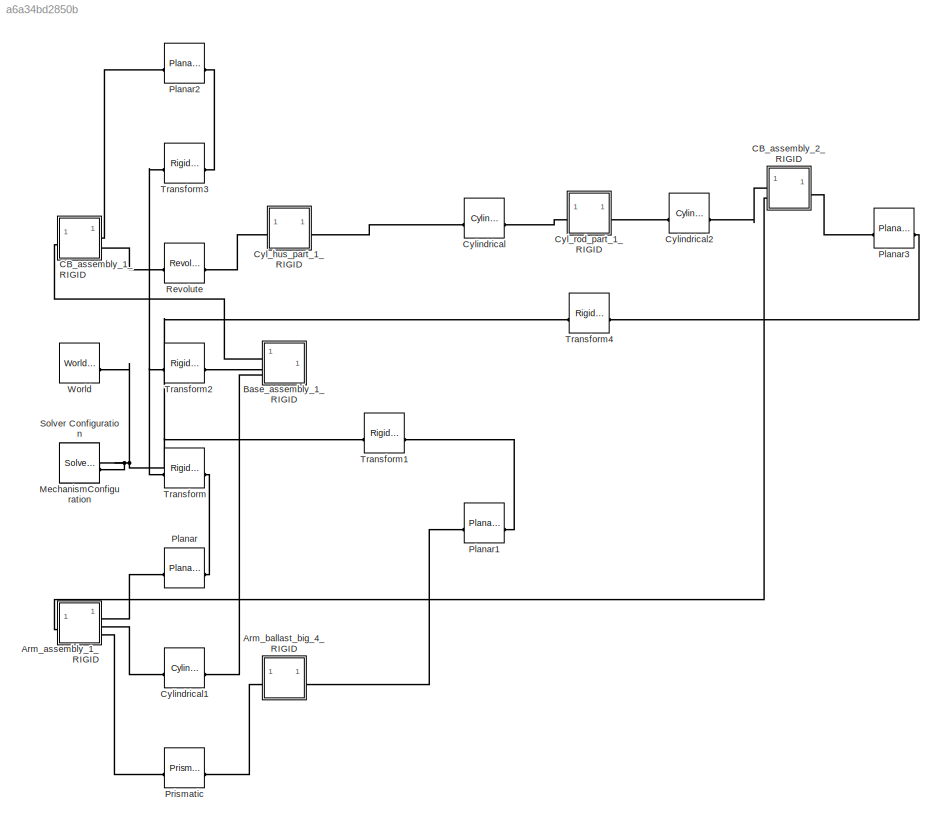
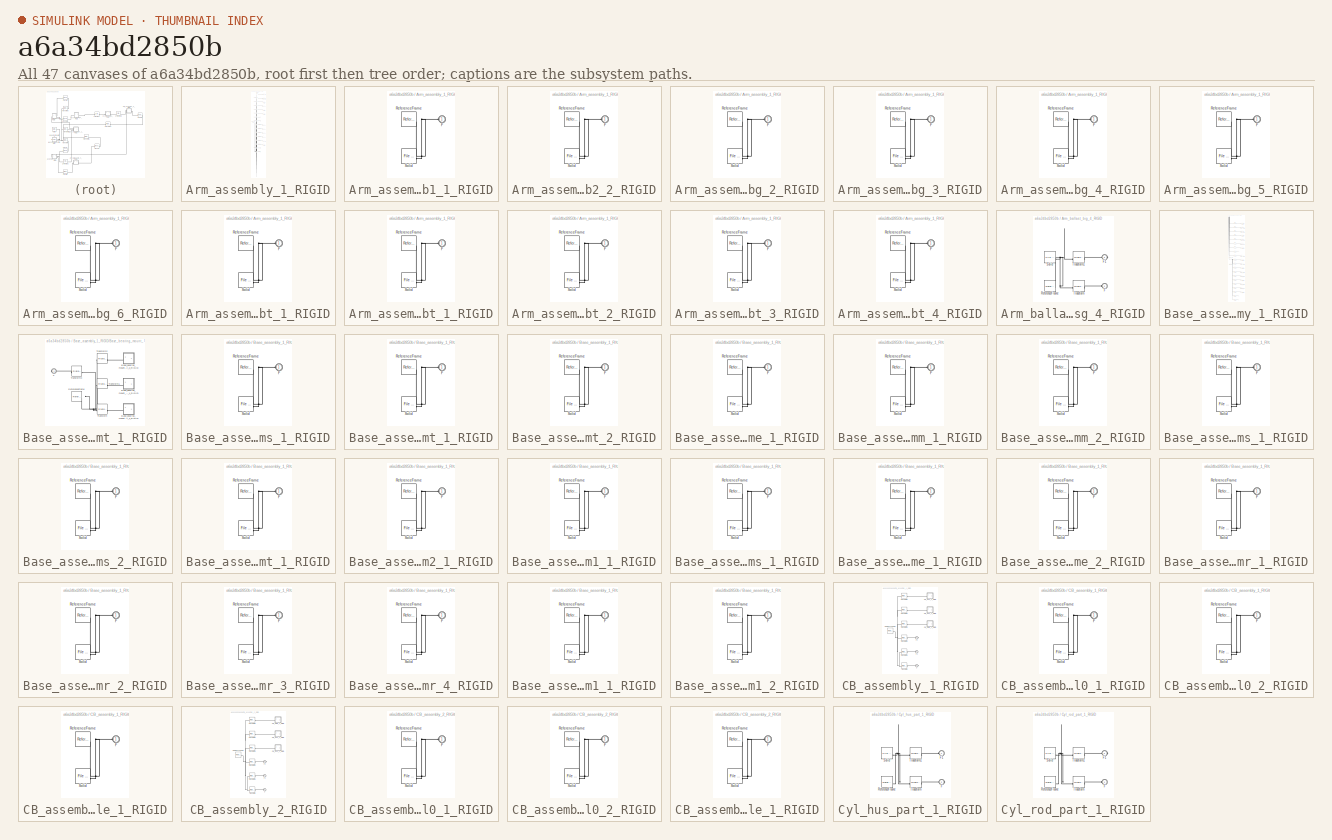
[diagram: thumbnail index - all 47 canvases of the model, root first then tree order]
MODEL slx_a6a34bd2850b
KIND model
CONFIG AbsTol = auto
CONFIG EnableMultiTasking = off
CONFIG FixedStep = auto
CONFIG MaxStep = auto
CONFIG MinStep = auto
CONFIG RelTol = 1e-3
CONFIG SampleTimeConstraint = Unconstrained
CONFIG SolverName = VariableStepAuto
CONFIG StartTime = 0.0
CONFIG StopTime = 10.0
WORKSPACE source: external: MATLAB File  (data not in archive)
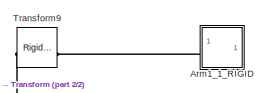
[diagram: Arm_assembly_1_RIGID - part 1/2, top center region]
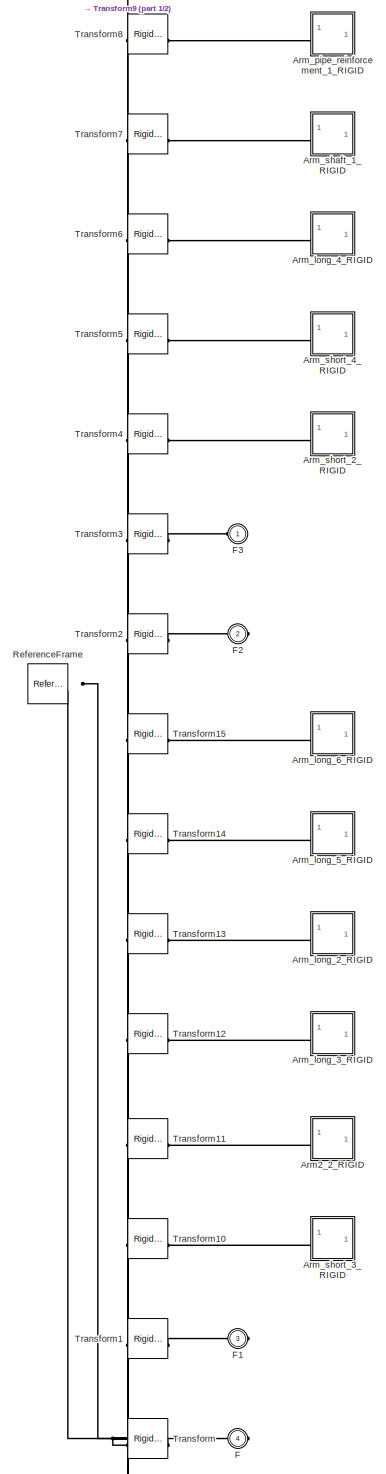
[diagram: Arm_assembly_1_RIGID - part 2/2, full width, middle band]
BLOCK [SubSystem] Arm_assembly_1_RIGID
BLOCK [SubSystem] Arm_assembly_1_RIGID/Arm1_1_RIGID
BLOCK [PMIOPort] Arm_assembly_1_RIGID/Arm1_1_RIGID/F
  Side = Left
BLOCK [Reference] Arm_assembly_1_RIGID/Arm1_1_RIGID/ReferenceFrame  REF=sm_lib/Frames and
Transforms/Reference
Frame
  SourceBlock = sm_lib/Frames and\nTransforms/Reference\nFrame
  SourceType = Reference\nFrame
BLOCK [Reference] Arm_assembly_1_RIGID/Arm1_1_RIGID/Solid  REF=sm_lib/Body Elements/File Solid
  SourceBlock = sm_lib/Body Elements/File Solid
  SourceType = File Solid
BLOCK [SubSystem] Arm_assembly_1_RIGID/Arm2_2_RIGID
BLOCK [PMIOPort] Arm_assembly_1_RIGID/Arm2_2_RIGID/F
  Side = Left
BLOCK [Reference] Arm_assembly_1_RIGID/Arm2_2_RIGID/ReferenceFrame  REF=sm_lib/Frames and
Transforms/Reference
Frame
  SourceBlock = sm_lib/Frames and\nTransforms/Reference\nFrame
  SourceType = Reference\nFrame
BLOCK [Reference] Arm_assembly_1_RIGID/Arm2_2_RIGID/Solid  REF=sm_lib/Body Elements/File Solid
  SourceBlock = sm_lib/Body Elements/File Solid
  SourceType = File Solid
BLOCK [SubSystem] Arm_assembly_1_RIGID/Arm_long_2_RIGID
BLOCK [PMIOPort] Arm_assembly_1_RIGID/Arm_long_2_RIGID/F
  Side = Left
BLOCK [Reference] Arm_assembly_1_RIGID/Arm_long_2_RIGID/ReferenceFrame  REF=sm_lib/Frames and
Transforms/Reference
Frame
  SourceBlock = sm_lib/Frames and\nTransforms/Reference\nFrame
  SourceType = Reference\nFrame
BLOCK [Reference] Arm_assembly_1_RIGID/Arm_long_2_RIGID/Solid  REF=sm_lib/Body Elements/File Solid
  SourceBlock = sm_lib/Body Elements/File Solid
  SourceType = File Solid
BLOCK [SubSystem] Arm_assembly_1_RIGID/Arm_long_3_RIGID
BLOCK [PMIOPort] Arm_assembly_1_RIGID/Arm_long_3_RIGID/F
  Side = Left
BLOCK [Reference] Arm_assembly_1_RIGID/Arm_long_3_RIGID/ReferenceFrame  REF=sm_lib/Frames and
Transforms/Reference
Frame
  SourceBlock = sm_lib/Frames and\nTransforms/Reference\nFrame
  SourceType = Reference\nFrame
BLOCK [Reference] Arm_assembly_1_RIGID/Arm_long_3_RIGID/Solid  REF=sm_lib/Body Elements/File Solid
  SourceBlock = sm_lib/Body Elements/File Solid
  SourceType = File Solid
BLOCK [SubSystem] Arm_assembly_1_RIGID/Arm_long_4_RIGID
BLOCK [PMIOPort] Arm_assembly_1_RIGID/Arm_long_4_RIGID/F
  Side = Left
BLOCK [Reference] Arm_assembly_1_RIGID/Arm_long_4_RIGID/ReferenceFrame  REF=sm_lib/Frames and
Transforms/Reference
Frame
  SourceBlock = sm_lib/Frames and\nTransforms/Reference\nFrame
  SourceType = Reference\nFrame
BLOCK [Reference] Arm_assembly_1_RIGID/Arm_long_4_RIGID/Solid  REF=sm_lib/Body Elements/File Solid
  SourceBlock = sm_lib/Body Elements/File Solid
  SourceType = File Solid
BLOCK [SubSystem] Arm_assembly_1_RIGID/Arm_long_5_RIGID
BLOCK [PMIOPort] Arm_assembly_1_RIGID/Arm_long_5_RIGID/F
  Side = Left
BLOCK [Reference] Arm_assembly_1_RIGID/Arm_long_5_RIGID/ReferenceFrame  REF=sm_lib/Frames and
Transforms/Reference
Frame
  SourceBlock = sm_lib/Frames and\nTransforms/Reference\nFrame
  SourceType = Reference\nFrame
BLOCK [Reference] Arm_assembly_1_RIGID/Arm_long_5_RIGID/Solid  REF=sm_lib/Body Elements/File Solid
  SourceBlock = sm_lib/Body Elements/File Solid
  SourceType = File Solid
BLOCK [SubSystem] Arm_assembly_1_RIGID/Arm_long_6_RIGID
BLOCK [PMIOPort] Arm_assembly_1_RIGID/Arm_long_6_RIGID/F
  Side = Left
BLOCK [Reference] Arm_assembly_1_RIGID/Arm_long_6_RIGID/ReferenceFrame  REF=sm_lib/Frames and
Transforms/Reference
Frame
  SourceBlock = sm_lib/Frames and\nTransforms/Reference\nFrame
  SourceType = Reference\nFrame
BLOCK [Reference] Arm_assembly_1_RIGID/Arm_long_6_RIGID/Solid  REF=sm_lib/Body Elements/File Solid
  SourceBlock = sm_lib/Body Elements/File Solid
  SourceType = File Solid
BLOCK [SubSystem] Arm_assembly_1_RIGID/Arm_pipe_reinforcement_1_RIGID
BLOCK [PMIOPort] Arm_assembly_1_RIGID/Arm_pipe_reinforcement_1_RIGID/F
  Side = Left
BLOCK [Reference] Arm_assembly_1_RIGID/Arm_pipe_reinforcement_1_RIGID/ReferenceFrame  REF=sm_lib/Frames and
Transforms/Reference
Frame
  SourceBlock = sm_lib/Frames and\nTransforms/Reference\nFrame
  SourceType = Reference\nFrame
BLOCK [Reference] Arm_assembly_1_RIGID/Arm_pipe_reinforcement_1_RIGID/Solid  REF=sm_lib/Body Elements/File Solid
  SourceBlock = sm_lib/Body Elements/File Solid
  SourceType = File Solid
BLOCK [SubSystem] Arm_assembly_1_RIGID/Arm_shaft_1_RIGID
BLOCK [PMIOPort] Arm_assembly_1_RIGID/Arm_shaft_1_RIGID/F
  Side = Left
BLOCK [Reference] Arm_assembly_1_RIGID/Arm_shaft_1_RIGID/ReferenceFrame  REF=sm_lib/Frames and
Transforms/Reference
Frame
  SourceBlock = sm_lib/Frames and\nTransforms/Reference\nFrame
  SourceType = Reference\nFrame
BLOCK [Reference] Arm_assembly_1_RIGID/Arm_shaft_1_RIGID/Solid  REF=sm_lib/Body Elements/File Solid
  SourceBlock = sm_lib/Body Elements/File Solid
  SourceType = File Solid
BLOCK [SubSystem] Arm_assembly_1_RIGID/Arm_short_2_RIGID
BLOCK [PMIOPort] Arm_assembly_1_RIGID/Arm_short_2_RIGID/F
  Side = Left
BLOCK [Reference] Arm_assembly_1_RIGID/Arm_short_2_RIGID/ReferenceFrame  REF=sm_lib/Frames and
Transforms/Reference
Frame
  SourceBlock = sm_lib/Frames and\nTransforms/Reference\nFrame
  SourceType = Reference\nFrame
BLOCK [Reference] Arm_assembly_1_RIGID/Arm_short_2_RIGID/Solid  REF=sm_lib/Body Elements/File Solid
  SourceBlock = sm_lib/Body Elements/File Solid
  SourceType = File Solid
BLOCK [SubSystem] Arm_assembly_1_RIGID/Arm_short_3_RIGID
BLOCK [PMIOPort] Arm_assembly_1_RIGID/Arm_short_3_RIGID/F
  Side = Left
BLOCK [Reference] Arm_assembly_1_RIGID/Arm_short_3_RIGID/ReferenceFrame  REF=sm_lib/Frames and
Transforms/Reference
Frame
  SourceBlock = sm_lib/Frames and\nTransforms/Reference\nFrame
  SourceType = Reference\nFrame
BLOCK [Reference] Arm_assembly_1_RIGID/Arm_short_3_RIGID/Solid  REF=sm_lib/Body Elements/File Solid
  SourceBlock = sm_lib/Body Elements/File Solid
  SourceType = File Solid
BLOCK [SubSystem] Arm_assembly_1_RIGID/Arm_short_4_RIGID
BLOCK [PMIOPort] Arm_assembly_1_RIGID/Arm_short_4_RIGID/F
  Side = Left
BLOCK [Reference] Arm_assembly_1_RIGID/Arm_short_4_RIGID/ReferenceFrame  REF=sm_lib/Frames and
Transforms/Reference
Frame
  SourceBlock = sm_lib/Frames and\nTransforms/Reference\nFrame
  SourceType = Reference\nFrame
BLOCK [Reference] Arm_assembly_1_RIGID/Arm_short_4_RIGID/Solid  REF=sm_lib/Body Elements/File Solid
  SourceBlock = sm_lib/Body Elements/File Solid
  SourceType = File Solid
BLOCK [PMIOPort] Arm_assembly_1_RIGID/F
  Port = 4
  Side = Right
BLOCK [PMIOPort] Arm_assembly_1_RIGID/F1
  Port = 3
  Side = Right
BLOCK [PMIOPort] Arm_assembly_1_RIGID/F2
  Port = 2
  Side = Right
BLOCK [PMIOPort] Arm_assembly_1_RIGID/F3
  Side = Left
BLOCK [Reference] Arm_assembly_1_RIGID/ReferenceFrame  REF=sm_lib/Frames and
Transforms/Reference
Frame
  SourceBlock = sm_lib/Frames and\nTransforms/Reference\nFrame
  SourceType = Reference\nFrame
BLOCK [Reference] Arm_assembly_1_RIGID/Transform  REF=sm_lib/Frames and
Transforms/Rigid
Transform
  SourceBlock = sm_lib/Frames and\nTransforms/Rigid\nTransform
  SourceType = Rigid\nTransform
BLOCK [Reference] Arm_assembly_1_RIGID/Transform1  REF=sm_lib/Frames and
Transforms/Rigid
Transform
  SourceBlock = sm_lib/Frames and\nTransforms/Rigid\nTransform
  SourceType = Rigid\nTransform
BLOCK [Reference] Arm_assembly_1_RIGID/Transform10  REF=sm_lib/Frames and
Transforms/Rigid
Transform
  SourceBlock = sm_lib/Frames and\nTransforms/Rigid\nTransform
  SourceType = Rigid\nTransform
BLOCK [Reference] Arm_assembly_1_RIGID/Transform11  REF=sm_lib/Frames and
Transforms/Rigid
Transform
  SourceBlock = sm_lib/Frames and\nTransforms/Rigid\nTransform
  SourceType = Rigid\nTransform
BLOCK [Reference] Arm_assembly_1_RIGID/Transform12  REF=sm_lib/Frames and
Transforms/Rigid
Transform
  SourceBlock = sm_lib/Frames and\nTransforms/Rigid\nTransform
  SourceType = Rigid\nTransform
BLOCK [Reference] Arm_assembly_1_RIGID/Transform13  REF=sm_lib/Frames and
Transforms/Rigid
Transform
  SourceBlock = sm_lib/Frames and\nTransforms/Rigid\nTransform
  SourceType = Rigid\nTransform
BLOCK [Reference] Arm_assembly_1_RIGID/Transform14  REF=sm_lib/Frames and
Transforms/Rigid
Transform
  SourceBlock = sm_lib/Frames and\nTransforms/Rigid\nTransform
  SourceType = Rigid\nTransform
BLOCK [Reference] Arm_assembly_1_RIGID/Transform15  REF=sm_lib/Frames and
Transforms/Rigid
Transform
  SourceBlock = sm_lib/Frames and\nTransforms/Rigid\nTransform
  SourceType = Rigid\nTransform
BLOCK [Reference] Arm_assembly_1_RIGID/Transform2  REF=sm_lib/Frames and
Transforms/Rigid
Transform
  SourceBlock = sm_lib/Frames and\nTransforms/Rigid\nTransform
  SourceType = Rigid\nTransform
BLOCK [Reference] Arm_assembly_1_RIGID/Transform3  REF=sm_lib/Frames and
Transforms/Rigid
Transform
  SourceBlock = sm_lib/Frames and\nTransforms/Rigid\nTransform
  SourceType = Rigid\nTransform
BLOCK [Reference] Arm_assembly_1_RIGID/Transform4  REF=sm_lib/Frames and
Transforms/Rigid
Transform
  SourceBlock = sm_lib/Frames and\nTransforms/Rigid\nTransform
  SourceType = Rigid\nTransform
BLOCK [Reference] Arm_assembly_1_RIGID/Transform5  REF=sm_lib/Frames and
Transforms/Rigid
Transform
  SourceBlock = sm_lib/Frames and\nTransforms/Rigid\nTransform
  SourceType = Rigid\nTransform
BLOCK [Reference] Arm_assembly_1_RIGID/Transform6  REF=sm_lib/Frames and
Transforms/Rigid
Transform
  SourceBlock = sm_lib/Frames and\nTransforms/Rigid\nTransform
  SourceType = Rigid\nTransform
BLOCK [Reference] Arm_assembly_1_RIGID/Transform7  REF=sm_lib/Frames and
Transforms/Rigid
Transform
  SourceBlock = sm_lib/Frames and\nTransforms/Rigid\nTransform
  SourceType = Rigid\nTransform
BLOCK [Reference] Arm_assembly_1_RIGID/Transform8  REF=sm_lib/Frames and
Transforms/Rigid
Transform
  SourceBlock = sm_lib/Frames and\nTransforms/Rigid\nTransform
  SourceType = Rigid\nTransform
BLOCK [Reference] Arm_assembly_1_RIGID/Transform9  REF=sm_lib/Frames and
Transforms/Rigid
Transform
  SourceBlock = sm_lib/Frames and\nTransforms/Rigid\nTransform
  SourceType = Rigid\nTransform
BLOCK [SubSystem] Arm_ballast_big_4_RIGID
BLOCK [PMIOPort] Arm_ballast_big_4_RIGID/F
  Side = Left
BLOCK [PMIOPort] Arm_ballast_big_4_RIGID/F1
  Port = 2
  Side = Right
BLOCK [Reference] Arm_ballast_big_4_RIGID/ReferenceFrame  REF=sm_lib/Frames and
Transforms/Reference
Frame
  SourceBlock = sm_lib/Frames and\nTransforms/Reference\nFrame
  SourceType = Reference\nFrame
BLOCK [Reference] Arm_ballast_big_4_RIGID/Solid  REF=sm_lib/Body Elements/File Solid
  SourceBlock = sm_lib/Body Elements/File Solid
  SourceType = File Solid
BLOCK [Reference] Arm_ballast_big_4_RIGID/Transform  REF=sm_lib/Frames and
Transforms/Rigid
Transform
  SourceBlock = sm_lib/Frames and\nTransforms/Rigid\nTransform
  SourceType = Rigid\nTransform
BLOCK [Reference] Arm_ballast_big_4_RIGID/Transform1  REF=sm_lib/Frames and
Transforms/Rigid
Transform
  SourceBlock = sm_lib/Frames and\nTransforms/Rigid\nTransform
  SourceType = Rigid\nTransform
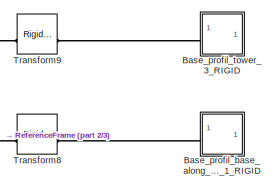
[diagram: Base_assembly_1_RIGID - part 1/3, top center region]
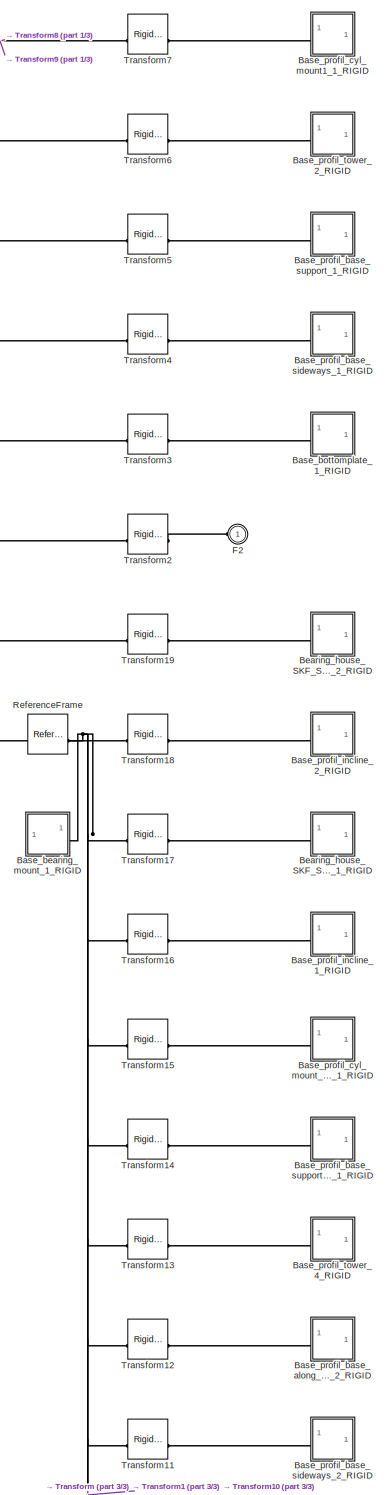
[diagram: Base_assembly_1_RIGID - part 2/3, full width, middle band]
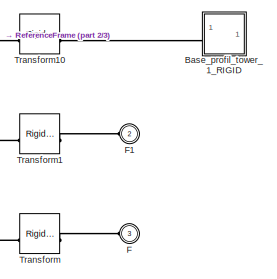
[diagram: Base_assembly_1_RIGID - part 3/3, bottom center region]
BLOCK [SubSystem] Base_assembly_1_RIGID
BLOCK [SubSystem] Base_assembly_1_RIGID/Base_bearing_mount_1_RIGID
BLOCK [SubSystem] Base_assembly_1_RIGID/Base_bearing_mount_1_RIGID/Base_bearing_mount_sideways_1_RIGID
BLOCK [PMIOPort] Base_assembly_1_RIGID/Base_bearing_mount_1_RIGID/Base_bearing_mount_sideways_1_RIGID/F
  Side = Left
BLOCK [Reference] Base_assembly_1_RIGID/Base_bearing_mount_1_RIGID/Base_bearing_mount_sideways_1_RIGID/ReferenceFrame  REF=sm_lib/Frames and
Transforms/Reference
Frame
  SourceBlock = sm_lib/Frames and\nTransforms/Reference\nFrame
  SourceType = Reference\nFrame
BLOCK [Reference] Base_assembly_1_RIGID/Base_bearing_mount_1_RIGID/Base_bearing_mount_sideways_1_RIGID/Solid  REF=sm_lib/Body Elements/File Solid
  SourceBlock = sm_lib/Body Elements/File Solid
  SourceType = File Solid
BLOCK [SubSystem] Base_assembly_1_RIGID/Base_bearing_mount_1_RIGID/Base_bearing_mount_support_1_RIGID
BLOCK [PMIOPort] Base_assembly_1_RIGID/Base_bearing_mount_1_RIGID/Base_bearing_mount_support_1_RIGID/F
  Side = Left
BLOCK [Reference] Base_assembly_1_RIGID/Base_bearing_mount_1_RIGID/Base_bearing_mount_support_1_RIGID/ReferenceFrame  REF=sm_lib/Frames and
Transforms/Reference
Frame
  SourceBlock = sm_lib/Frames and\nTransforms/Reference\nFrame
  SourceType = Reference\nFrame
BLOCK [Reference] Base_assembly_1_RIGID/Base_bearing_mount_1_RIGID/Base_bearing_mount_support_1_RIGID/Solid  REF=sm_lib/Body Elements/File Solid
  SourceBlock = sm_lib/Body Elements/File Solid
  SourceType = File Solid
BLOCK [SubSystem] Base_assembly_1_RIGID/Base_bearing_mount_1_RIGID/Base_bearing_mount_support_2_RIGID
BLOCK [PMIOPort] Base_assembly_1_RIGID/Base_bearing_mount_1_RIGID/Base_bearing_mount_support_2_RIGID/F
  Side = Left
BLOCK [Reference] Base_assembly_1_RIGID/Base_bearing_mount_1_RIGID/Base_bearing_mount_support_2_RIGID/ReferenceFrame  REF=sm_lib/Frames and
Transforms/Reference
Frame
  SourceBlock = sm_lib/Frames and\nTransforms/Reference\nFrame
  SourceType = Reference\nFrame
BLOCK [Reference] Base_assembly_1_RIGID/Base_bearing_mount_1_RIGID/Base_bearing_mount_support_2_RIGID/Solid  REF=sm_lib/Body Elements/File Solid
  SourceBlock = sm_lib/Body Elements/File Solid
  SourceType = File Solid
BLOCK [PMIOPort] Base_assembly_1_RIGID/Base_bearing_mount_1_RIGID/F
  Side = Right
BLOCK [Reference] Base_assembly_1_RIGID/Base_bearing_mount_1_RIGID/ReferenceFrame  REF=sm_lib/Frames and
Transforms/Reference
Frame
  SourceBlock = sm_lib/Frames and\nTransforms/Reference\nFrame
  SourceType = Reference\nFrame
BLOCK [Reference] Base_assembly_1_RIGID/Base_bearing_mount_1_RIGID/Transform  REF=sm_lib/Frames and
Transforms/Rigid
Transform
  SourceBlock = sm_lib/Frames and\nTransforms/Rigid\nTransform
  SourceType = Rigid\nTransform
BLOCK [Reference] Base_assembly_1_RIGID/Base_bearing_mount_1_RIGID/Transform1  REF=sm_lib/Frames and
Transforms/Rigid
Transform
  SourceBlock = sm_lib/Frames and\nTransforms/Rigid\nTransform
  SourceType = Rigid\nTransform
BLOCK [Reference] Base_assembly_1_RIGID/Base_bearing_mount_1_RIGID/Transform2  REF=sm_lib/Frames and
Transforms/Rigid
Transform
  SourceBlock = sm_lib/Frames and\nTransforms/Rigid\nTransform
  SourceType = Rigid\nTransform
BLOCK [Reference] Base_assembly_1_RIGID/Base_bearing_mount_1_RIGID/Transform3  REF=sm_lib/Frames and
Transforms/Rigid
Transform
  SourceBlock = sm_lib/Frames and\nTransforms/Rigid\nTransform
  SourceType = Rigid\nTransform
BLOCK [SubSystem] Base_assembly_1_RIGID/Base_bottomplate_1_RIGID
BLOCK [PMIOPort] Base_assembly_1_RIGID/Base_bottomplate_1_RIGID/F
  Side = Left
BLOCK [Reference] Base_assembly_1_RIGID/Base_bottomplate_1_RIGID/ReferenceFrame  REF=sm_lib/Frames and
Transforms/Reference
Frame
  SourceBlock = sm_lib/Frames and\nTransforms/Reference\nFrame
  SourceType = Reference\nFrame
BLOCK [Reference] Base_assembly_1_RIGID/Base_bottomplate_1_RIGID/Solid  REF=sm_lib/Body Elements/File Solid
  SourceBlock = sm_lib/Body Elements/File Solid
  SourceType = File Solid
BLOCK [SubSystem] Base_assembly_1_RIGID/Base_profil_base_along_arm_1_RIGID
BLOCK [PMIOPort] Base_assembly_1_RIGID/Base_profil_base_along_arm_1_RIGID/F
  Side = Left
BLOCK [Reference] Base_assembly_1_RIGID/Base_profil_base_along_arm_1_RIGID/ReferenceFrame  REF=sm_lib/Frames and
Transforms/Reference
Frame
  SourceBlock = sm_lib/Frames and\nTransforms/Reference\nFrame
  SourceType = Reference\nFrame
BLOCK [Reference] Base_assembly_1_RIGID/Base_profil_base_along_arm_1_RIGID/Solid  REF=sm_lib/Body Elements/File Solid
  SourceBlock = sm_lib/Body Elements/File Solid
  SourceType = File Solid
BLOCK [SubSystem] Base_assembly_1_RIGID/Base_profil_base_along_arm_2_RIGID
BLOCK [PMIOPort] Base_assembly_1_RIGID/Base_profil_base_along_arm_2_RIGID/F
  Side = Left
BLOCK [Reference] Base_assembly_1_RIGID/Base_profil_base_along_arm_2_RIGID/ReferenceFrame  REF=sm_lib/Frames and
Transforms/Reference
Frame
  SourceBlock = sm_lib/Frames and\nTransforms/Reference\nFrame
  SourceType = Reference\nFrame
BLOCK [Reference] Base_assembly_1_RIGID/Base_profil_base_along_arm_2_RIGID/Solid  REF=sm_lib/Body Elements/File Solid
  SourceBlock = sm_lib/Body Elements/File Solid
  SourceType = File Solid
BLOCK [SubSystem] Base_assembly_1_RIGID/Base_profil_base_sideways_1_RIGID
BLOCK [PMIOPort] Base_assembly_1_RIGID/Base_profil_base_sideways_1_RIGID/F
  Side = Left
BLOCK [Reference] Base_assembly_1_RIGID/Base_profil_base_sideways_1_RIGID/ReferenceFrame  REF=sm_lib/Frames and
Transforms/Reference
Frame
  SourceBlock = sm_lib/Frames and\nTransforms/Reference\nFrame
  SourceType = Reference\nFrame
BLOCK [Reference] Base_assembly_1_RIGID/Base_profil_base_sideways_1_RIGID/Solid  REF=sm_lib/Body Elements/File Solid
  SourceBlock = sm_lib/Body Elements/File Solid
  SourceType = File Solid
BLOCK [SubSystem] Base_assembly_1_RIGID/Base_profil_base_sideways_2_RIGID
BLOCK [PMIOPort] Base_assembly_1_RIGID/Base_profil_base_sideways_2_RIGID/F
  Side = Left
BLOCK [Reference] Base_assembly_1_RIGID/Base_profil_base_sideways_2_RIGID/ReferenceFrame  REF=sm_lib/Frames and
Transforms/Reference
Frame
  SourceBlock = sm_lib/Frames and\nTransforms/Reference\nFrame
  SourceType = Reference\nFrame
BLOCK [Reference] Base_assembly_1_RIGID/Base_profil_base_sideways_2_RIGID/Solid  REF=sm_lib/Body Elements/File Solid
  SourceBlock = sm_lib/Body Elements/File Solid
  SourceType = File Solid
BLOCK [SubSystem] Base_assembly_1_RIGID/Base_profil_base_support_1_RIGID
BLOCK [PMIOPort] Base_assembly_1_RIGID/Base_profil_base_support_1_RIGID/F
  Side = Left
BLOCK [Reference] Base_assembly_1_RIGID/Base_profil_base_support_1_RIGID/ReferenceFrame  REF=sm_lib/Frames and
Transforms/Reference
Frame
  SourceBlock = sm_lib/Frames and\nTransforms/Reference\nFrame
  SourceType = Reference\nFrame
BLOCK [Reference] Base_assembly_1_RIGID/Base_profil_base_support_1_RIGID/Solid  REF=sm_lib/Body Elements/File Solid
  SourceBlock = sm_lib/Body Elements/File Solid
  SourceType = File Solid
BLOCK [SubSystem] Base_assembly_1_RIGID/Base_profil_base_support_2_1_RIGID
BLOCK [PMIOPort] Base_assembly_1_RIGID/Base_profil_base_support_2_1_RIGID/F
  Side = Left
BLOCK [Reference] Base_assembly_1_RIGID/Base_profil_base_support_2_1_RIGID/ReferenceFrame  REF=sm_lib/Frames and
Transforms/Reference
Frame
  SourceBlock = sm_lib/Frames and\nTransforms/Reference\nFrame
  SourceType = Reference\nFrame
BLOCK [Reference] Base_assembly_1_RIGID/Base_profil_base_support_2_1_RIGID/Solid  REF=sm_lib/Body Elements/File Solid
  SourceBlock = sm_lib/Body Elements/File Solid
  SourceType = File Solid
BLOCK [SubSystem] Base_assembly_1_RIGID/Base_profil_cyl_mount1_1_RIGID
BLOCK [PMIOPort] Base_assembly_1_RIGID/Base_profil_cyl_mount1_1_RIGID/F
  Side = Left
BLOCK [Reference] Base_assembly_1_RIGID/Base_profil_cyl_mount1_1_RIGID/ReferenceFrame  REF=sm_lib/Frames and
Transforms/Reference
Frame
  SourceBlock = sm_lib/Frames and\nTransforms/Reference\nFrame
  SourceType = Reference\nFrame
BLOCK [Reference] Base_assembly_1_RIGID/Base_profil_cyl_mount1_1_RIGID/Solid  REF=sm_lib/Body Elements/File Solid
  SourceBlock = sm_lib/Body Elements/File Solid
  SourceType = File Solid
BLOCK [SubSystem] Base_assembly_1_RIGID/Base_profil_cyl_mount_support_sideways_1_RIGID
BLOCK [PMIOPort] Base_assembly_1_RIGID/Base_profil_cyl_mount_support_sideways_1_RIGID/F
  Side = Left
BLOCK [Reference] Base_assembly_1_RIGID/Base_profil_cyl_mount_support_sideways_1_RIGID/ReferenceFrame  REF=sm_lib/Frames and
Transforms/Reference
Frame
  SourceBlock = sm_lib/Frames and\nTransforms/Reference\nFrame
  SourceType = Reference\nFrame
BLOCK [Reference] Base_assembly_1_RIGID/Base_profil_cyl_mount_support_sideways_1_RIGID/Solid  REF=sm_lib/Body Elements/File Solid
  SourceBlock = sm_lib/Body Elements/File Solid
  SourceType = File Solid
BLOCK [SubSystem] Base_assembly_1_RIGID/Base_profil_incline_1_RIGID
BLOCK [PMIOPort] Base_assembly_1_RIGID/Base_profil_incline_1_RIGID/F
  Side = Left
BLOCK [Reference] Base_assembly_1_RIGID/Base_profil_incline_1_RIGID/ReferenceFrame  REF=sm_lib/Frames and
Transforms/Reference
Frame
  SourceBlock = sm_lib/Frames and\nTransforms/Reference\nFrame
  SourceType = Reference\nFrame
BLOCK [Reference] Base_assembly_1_RIGID/Base_profil_incline_1_RIGID/Solid  REF=sm_lib/Body Elements/File Solid
  SourceBlock = sm_lib/Body Elements/File Solid
  SourceType = File Solid
BLOCK [SubSystem] Base_assembly_1_RIGID/Base_profil_incline_2_RIGID
BLOCK [PMIOPort] Base_assembly_1_RIGID/Base_profil_incline_2_RIGID/F
  Side = Left
BLOCK [Reference] Base_assembly_1_RIGID/Base_profil_incline_2_RIGID/ReferenceFrame  REF=sm_lib/Frames and
Transforms/Reference
Frame
  SourceBlock = sm_lib/Frames and\nTransforms/Reference\nFrame
  SourceType = Reference\nFrame
BLOCK [Reference] Base_assembly_1_RIGID/Base_profil_incline_2_RIGID/Solid  REF=sm_lib/Body Elements/File Solid
  SourceBlock = sm_lib/Body Elements/File Solid
  SourceType = File Solid
BLOCK [SubSystem] Base_assembly_1_RIGID/Base_profil_tower_1_RIGID
BLOCK [PMIOPort] Base_assembly_1_RIGID/Base_profil_tower_1_RIGID/F
  Side = Left
BLOCK [Reference] Base_assembly_1_RIGID/Base_profil_tower_1_RIGID/ReferenceFrame  REF=sm_lib/Frames and
Transforms/Reference
Frame
  SourceBlock = sm_lib/Frames and\nTransforms/Reference\nFrame
  SourceType = Reference\nFrame
BLOCK [Reference] Base_assembly_1_RIGID/Base_profil_tower_1_RIGID/Solid  REF=sm_lib/Body Elements/File Solid
  SourceBlock = sm_lib/Body Elements/File Solid
  SourceType = File Solid
BLOCK [SubSystem] Base_assembly_1_RIGID/Base_profil_tower_2_RIGID
BLOCK [PMIOPort] Base_assembly_1_RIGID/Base_profil_tower_2_RIGID/F
  Side = Left
BLOCK [Reference] Base_assembly_1_RIGID/Base_profil_tower_2_RIGID/ReferenceFrame  REF=sm_lib/Frames and
Transforms/Reference
Frame
  SourceBlock = sm_lib/Frames and\nTransforms/Reference\nFrame
  SourceType = Reference\nFrame
BLOCK [Reference] Base_assembly_1_RIGID/Base_profil_tower_2_RIGID/Solid  REF=sm_lib/Body Elements/File Solid
  SourceBlock = sm_lib/Body Elements/File Solid
  SourceType = File Solid
BLOCK [SubSystem] Base_assembly_1_RIGID/Base_profil_tower_3_RIGID
BLOCK [PMIOPort] Base_assembly_1_RIGID/Base_profil_tower_3_RIGID/F
  Side = Left
BLOCK [Reference] Base_assembly_1_RIGID/Base_profil_tower_3_RIGID/ReferenceFrame  REF=sm_lib/Frames and
Transforms/Reference
Frame
  SourceBlock = sm_lib/Frames and\nTransforms/Reference\nFrame
  SourceType = Reference\nFrame
BLOCK [Reference] Base_assembly_1_RIGID/Base_profil_tower_3_RIGID/Solid  REF=sm_lib/Body Elements/File Solid
  SourceBlock = sm_lib/Body Elements/File Solid
  SourceType = File Solid
BLOCK [SubSystem] Base_assembly_1_RIGID/Base_profil_tower_4_RIGID
BLOCK [PMIOPort] Base_assembly_1_RIGID/Base_profil_tower_4_RIGID/F
  Side = Left
BLOCK [Reference] Base_assembly_1_RIGID/Base_profil_tower_4_RIGID/ReferenceFrame  REF=sm_lib/Frames and
Transforms/Reference
Frame
  SourceBlock = sm_lib/Frames and\nTransforms/Reference\nFrame
  SourceType = Reference\nFrame
BLOCK [Reference] Base_assembly_1_RIGID/Base_profil_tower_4_RIGID/Solid  REF=sm_lib/Body Elements/File Solid
  SourceBlock = sm_lib/Body Elements/File Solid
  SourceType = File Solid
BLOCK [SubSystem] Base_assembly_1_RIGID/Bearing_house_SKF_SNA_513_611_1_RIGID
BLOCK [PMIOPort] Base_assembly_1_RIGID/Bearing_house_SKF_SNA_513_611_1_RIGID/F
  Side = Left
BLOCK [Reference] Base_assembly_1_RIGID/Bearing_house_SKF_SNA_513_611_1_RIGID/ReferenceFrame  REF=sm_lib/Frames and
Transforms/Reference
Frame
  SourceBlock = sm_lib/Frames and\nTransforms/Reference\nFrame
  SourceType = Reference\nFrame
BLOCK [Reference] Base_assembly_1_RIGID/Bearing_house_SKF_SNA_513_611_1_RIGID/Solid  REF=sm_lib/Body Elements/File Solid
  SourceBlock = sm_lib/Body Elements/File Solid
  SourceType = File Solid
BLOCK [SubSystem] Base_assembly_1_RIGID/Bearing_house_SKF_SNA_513_611_2_RIGID
BLOCK [PMIOPort] Base_assembly_1_RIGID/Bearing_house_SKF_SNA_513_611_2_RIGID/F
  Side = Left
BLOCK [Reference] Base_assembly_1_RIGID/Bearing_house_SKF_SNA_513_611_2_RIGID/ReferenceFrame  REF=sm_lib/Frames and
Transforms/Reference
Frame
  SourceBlock = sm_lib/Frames and\nTransforms/Reference\nFrame
  SourceType = Reference\nFrame
BLOCK [Reference] Base_assembly_1_RIGID/Bearing_house_SKF_SNA_513_611_2_RIGID/Solid  REF=sm_lib/Body Elements/File Solid
  SourceBlock = sm_lib/Body Elements/File Solid
  SourceType = File Solid
BLOCK [PMIOPort] Base_assembly_1_RIGID/F
  Port = 3
  Side = Left
BLOCK [PMIOPort] Base_assembly_1_RIGID/F1
  Port = 2
  Side = Left
BLOCK [PMIOPort] Base_assembly_1_RIGID/F2
  Side = Left
BLOCK [Reference] Base_assembly_1_RIGID/ReferenceFrame  REF=sm_lib/Frames and
Transforms/Reference
Frame
  SourceBlock = sm_lib/Frames and\nTransforms/Reference\nFrame
  SourceType = Reference\nFrame
BLOCK [Reference] Base_assembly_1_RIGID/Transform  REF=sm_lib/Frames and
Transforms/Rigid
Transform
  SourceBlock = sm_lib/Frames and\nTransforms/Rigid\nTransform
  SourceType = Rigid\nTransform
BLOCK [Reference] Base_assembly_1_RIGID/Transform1  REF=sm_lib/Frames and
Transforms/Rigid
Transform
  SourceBlock = sm_lib/Frames and\nTransforms/Rigid\nTransform
  SourceType = Rigid\nTransform
BLOCK [Reference] Base_assembly_1_RIGID/Transform10  REF=sm_lib/Frames and
Transforms/Rigid
Transform
  SourceBlock = sm_lib/Frames and\nTransforms/Rigid\nTransform
  SourceType = Rigid\nTransform
BLOCK [Reference] Base_assembly_1_RIGID/Transform11  REF=sm_lib/Frames and
Transforms/Rigid
Transform
  SourceBlock = sm_lib/Frames and\nTransforms/Rigid\nTransform
  SourceType = Rigid\nTransform
BLOCK [Reference] Base_assembly_1_RIGID/Transform12  REF=sm_lib/Frames and
Transforms/Rigid
Transform
  SourceBlock = sm_lib/Frames and\nTransforms/Rigid\nTransform
  SourceType = Rigid\nTransform
BLOCK [Reference] Base_assembly_1_RIGID/Transform13  REF=sm_lib/Frames and
Transforms/Rigid
Transform
  SourceBlock = sm_lib/Frames and\nTransforms/Rigid\nTransform
  SourceType = Rigid\nTransform
BLOCK [Reference] Base_assembly_1_RIGID/Transform14  REF=sm_lib/Frames and
Transforms/Rigid
Transform
  SourceBlock = sm_lib/Frames and\nTransforms/Rigid\nTransform
  SourceType = Rigid\nTransform
BLOCK [Reference] Base_assembly_1_RIGID/Transform15  REF=sm_lib/Frames and
Transforms/Rigid
Transform
  SourceBlock = sm_lib/Frames and\nTransforms/Rigid\nTransform
  SourceType = Rigid\nTransform
BLOCK [Reference] Base_assembly_1_RIGID/Transform16  REF=sm_lib/Frames and
Transforms/Rigid
Transform
  SourceBlock = sm_lib/Frames and\nTransforms/Rigid\nTransform
  SourceType = Rigid\nTransform
BLOCK [Reference] Base_assembly_1_RIGID/Transform17  REF=sm_lib/Frames and
Transforms/Rigid
Transform
  SourceBlock = sm_lib/Frames and\nTransforms/Rigid\nTransform
  SourceType = Rigid\nTransform
BLOCK [Reference] Base_assembly_1_RIGID/Transform18  REF=sm_lib/Frames and
Transforms/Rigid
Transform
  SourceBlock = sm_lib/Frames and\nTransforms/Rigid\nTransform
  SourceType = Rigid\nTransform
BLOCK [Reference] Base_assembly_1_RIGID/Transform19  REF=sm_lib/Frames and
Transforms/Rigid
Transform
  SourceBlock = sm_lib/Frames and\nTransforms/Rigid\nTransform
  SourceType = Rigid\nTransform
BLOCK [Reference] Base_assembly_1_RIGID/Transform2  REF=sm_lib/Frames and
Transforms/Rigid
Transform
  SourceBlock = sm_lib/Frames and\nTransforms/Rigid\nTransform
  SourceType = Rigid\nTransform
BLOCK [Reference] Base_assembly_1_RIGID/Transform3  REF=sm_lib/Frames and
Transforms/Rigid
Transform
  SourceBlock = sm_lib/Frames and\nTransforms/Rigid\nTransform
  SourceType = Rigid\nTransform
BLOCK [Reference] Base_assembly_1_RIGID/Transform4  REF=sm_lib/Frames and
Transforms/Rigid
Transform
  SourceBlock = sm_lib/Frames and\nTransforms/Rigid\nTransform
  SourceType = Rigid\nTransform
BLOCK [Reference] Base_assembly_1_RIGID/Transform5  REF=sm_lib/Frames and
Transforms/Rigid
Transform
  SourceBlock = sm_lib/Frames and\nTransforms/Rigid\nTransform
  SourceType = Rigid\nTransform
BLOCK [Reference] Base_assembly_1_RIGID/Transform6  REF=sm_lib/Frames and
Transforms/Rigid
Transform
  SourceBlock = sm_lib/Frames and\nTransforms/Rigid\nTransform
  SourceType = Rigid\nTransform
BLOCK [Reference] Base_assembly_1_RIGID/Transform7  REF=sm_lib/Frames and
Transforms/Rigid
Transform
  SourceBlock = sm_lib/Frames and\nTransforms/Rigid\nTransform
  SourceType = Rigid\nTransform
BLOCK [Reference] Base_assembly_1_RIGID/Transform8  REF=sm_lib/Frames and
Transforms/Rigid
Transform
  SourceBlock = sm_lib/Frames and\nTransforms/Rigid\nTransform
  SourceType = Rigid\nTransform
BLOCK [Reference] Base_assembly_1_RIGID/Transform9  REF=sm_lib/Frames and
Transforms/Rigid
Transform
  SourceBlock = sm_lib/Frames and\nTransforms/Rigid\nTransform
  SourceType = Rigid\nTransform
BLOCK [SubSystem] CB_assembly_1_RIGID
BLOCK [SubSystem] CB_assembly_1_RIGID/CB_850_1_RIGID
BLOCK [PMIOPort] CB_assembly_1_RIGID/CB_850_1_RIGID/F
  Side = Left
BLOCK [Reference] CB_assembly_1_RIGID/CB_850_1_RIGID/ReferenceFrame  REF=sm_lib/Frames and
Transforms/Reference
Frame
  SourceBlock = sm_lib/Frames and\nTransforms/Reference\nFrame
  SourceType = Reference\nFrame
BLOCK [Reference] CB_assembly_1_RIGID/CB_850_1_RIGID/Solid  REF=sm_lib/Body Elements/File Solid
  SourceBlock = sm_lib/Body Elements/File Solid
  SourceType = File Solid
BLOCK [SubSystem] CB_assembly_1_RIGID/CB_850_2_RIGID
BLOCK [PMIOPort] CB_assembly_1_RIGID/CB_850_2_RIGID/F
  Side = Left
BLOCK [Reference] CB_assembly_1_RIGID/CB_850_2_RIGID/ReferenceFrame  REF=sm_lib/Frames and
Transforms/Reference
Frame
  SourceBlock = sm_lib/Frames and\nTransforms/Reference\nFrame
  SourceType = Reference\nFrame
BLOCK [Reference] CB_assembly_1_RIGID/CB_850_2_RIGID/Solid  REF=sm_lib/Body Elements/File Solid
  SourceBlock = sm_lib/Body Elements/File Solid
  SourceType = File Solid
BLOCK [SubSystem] CB_assembly_1_RIGID/CB_plate_1_RIGID
BLOCK [PMIOPort] CB_assembly_1_RIGID/CB_plate_1_RIGID/F
  Side = Left
BLOCK [Reference] CB_assembly_1_RIGID/CB_plate_1_RIGID/ReferenceFrame  REF=sm_lib/Frames and
Transforms/Reference
Frame
  SourceBlock = sm_lib/Frames and\nTransforms/Reference\nFrame
  SourceType = Reference\nFrame
BLOCK [Reference] CB_assembly_1_RIGID/CB_plate_1_RIGID/Solid  REF=sm_lib/Body Elements/File Solid
  SourceBlock = sm_lib/Body Elements/File Solid
  SourceType = File Solid
BLOCK [PMIOPort] CB_assembly_1_RIGID/F
  Port = 3
  Side = Right
BLOCK [PMIOPort] CB_assembly_1_RIGID/F1
  Side = Left
BLOCK [PMIOPort] CB_assembly_1_RIGID/F2
  Port = 2
  Side = Right
BLOCK [Reference] CB_assembly_1_RIGID/ReferenceFrame  REF=sm_lib/Frames and
Transforms/Reference
Frame
  SourceBlock = sm_lib/Frames and\nTransforms/Reference\nFrame
  SourceType = Reference\nFrame
BLOCK [Reference] CB_assembly_1_RIGID/Transform  REF=sm_lib/Frames and
Transforms/Rigid
Transform
  SourceBlock = sm_lib/Frames and\nTransforms/Rigid\nTransform
  SourceType = Rigid\nTransform
BLOCK [Reference] CB_assembly_1_RIGID/Transform1  REF=sm_lib/Frames and
Transforms/Rigid
Transform
  SourceBlock = sm_lib/Frames and\nTransforms/Rigid\nTransform
  SourceType = Rigid\nTransform
BLOCK [Reference] CB_assembly_1_RIGID/Transform2  REF=sm_lib/Frames and
Transforms/Rigid
Transform
  SourceBlock = sm_lib/Frames and\nTransforms/Rigid\nTransform
  SourceType = Rigid\nTransform
BLOCK [Reference] CB_assembly_1_RIGID/Transform3  REF=sm_lib/Frames and
Transforms/Rigid
Transform
  SourceBlock = sm_lib/Frames and\nTransforms/Rigid\nTransform
  SourceType = Rigid\nTransform
BLOCK [Reference] CB_assembly_1_RIGID/Transform4  REF=sm_lib/Frames and
Transforms/Rigid
Transform
  SourceBlock = sm_lib/Frames and\nTransforms/Rigid\nTransform
  SourceType = Rigid\nTransform
BLOCK [Reference] CB_assembly_1_RIGID/Transform5  REF=sm_lib/Frames and
Transforms/Rigid
Transform
  SourceBlock = sm_lib/Frames and\nTransforms/Rigid\nTransform
  SourceType = Rigid\nTransform
BLOCK [SubSystem] CB_assembly_2_RIGID
BLOCK [SubSystem] CB_assembly_2_RIGID/CB_850_1_RIGID
BLOCK [PMIOPort] CB_assembly_2_RIGID/CB_850_1_RIGID/F
  Side = Left
BLOCK [Reference] CB_assembly_2_RIGID/CB_850_1_RIGID/ReferenceFrame  REF=sm_lib/Frames and
Transforms/Reference
Frame
  SourceBlock = sm_lib/Frames and\nTransforms/Reference\nFrame
  SourceType = Reference\nFrame
BLOCK [Reference] CB_assembly_2_RIGID/CB_850_1_RIGID/Solid  REF=sm_lib/Body Elements/File Solid
  SourceBlock = sm_lib/Body Elements/File Solid
  SourceType = File Solid
BLOCK [SubSystem] CB_assembly_2_RIGID/CB_850_2_RIGID
BLOCK [PMIOPort] CB_assembly_2_RIGID/CB_850_2_RIGID/F
  Side = Left
BLOCK [Reference] CB_assembly_2_RIGID/CB_850_2_RIGID/ReferenceFrame  REF=sm_lib/Frames and
Transforms/Reference
Frame
  SourceBlock = sm_lib/Frames and\nTransforms/Reference\nFrame
  SourceType = Reference\nFrame
BLOCK [Reference] CB_assembly_2_RIGID/CB_850_2_RIGID/Solid  REF=sm_lib/Body Elements/File Solid
  SourceBlock = sm_lib/Body Elements/File Solid
  SourceType = File Solid
BLOCK [SubSystem] CB_assembly_2_RIGID/CB_plate_1_RIGID
BLOCK [PMIOPort] CB_assembly_2_RIGID/CB_plate_1_RIGID/F
  Side = Left
BLOCK [Reference] CB_assembly_2_RIGID/CB_plate_1_RIGID/ReferenceFrame  REF=sm_lib/Frames and
Transforms/Reference
Frame
  SourceBlock = sm_lib/Frames and\nTransforms/Reference\nFrame
  SourceType = Reference\nFrame
BLOCK [Reference] CB_assembly_2_RIGID/CB_plate_1_RIGID/Solid  REF=sm_lib/Body Elements/File Solid
  SourceBlock = sm_lib/Body Elements/File Solid
  SourceType = File Solid
BLOCK [PMIOPort] CB_assembly_2_RIGID/F
  Side = Left
BLOCK [PMIOPort] CB_assembly_2_RIGID/F1
  Port = 2
  Side = Left
BLOCK [PMIOPort] CB_assembly_2_RIGID/F2
  Port = 3
  Side = Right
BLOCK [Reference] CB_assembly_2_RIGID/ReferenceFrame  REF=sm_lib/Frames and
Transforms/Reference
Frame
  SourceBlock = sm_lib/Frames and\nTransforms/Reference\nFrame
  SourceType = Reference\nFrame
BLOCK [Reference] CB_assembly_2_RIGID/Transform  REF=sm_lib/Frames and
Transforms/Rigid
Transform
  SourceBlock = sm_lib/Frames and\nTransforms/Rigid\nTransform
  SourceType = Rigid\nTransform
BLOCK [Reference] CB_assembly_2_RIGID/Transform1  REF=sm_lib/Frames and
Transforms/Rigid
Transform
  SourceBlock = sm_lib/Frames and\nTransforms/Rigid\nTransform
  SourceType = Rigid\nTransform
BLOCK [Reference] CB_assembly_2_RIGID/Transform2  REF=sm_lib/Frames and
Transforms/Rigid
Transform
  SourceBlock = sm_lib/Frames and\nTransforms/Rigid\nTransform
  SourceType = Rigid\nTransform
BLOCK [Reference] CB_assembly_2_RIGID/Transform3  REF=sm_lib/Frames and
Transforms/Rigid
Transform
  SourceBlock = sm_lib/Frames and\nTransforms/Rigid\nTransform
  SourceType = Rigid\nTransform
BLOCK [Reference] CB_assembly_2_RIGID/Transform4  REF=sm_lib/Frames and
Transforms/Rigid
Transform
  SourceBlock = sm_lib/Frames and\nTransforms/Rigid\nTransform
  SourceType = Rigid\nTransform
BLOCK [Reference] CB_assembly_2_RIGID/Transform5  REF=sm_lib/Frames and
Transforms/Rigid
Transform
  SourceBlock = sm_lib/Frames and\nTransforms/Rigid\nTransform
  SourceType = Rigid\nTransform
BLOCK [SubSystem] Cyl_hus_part_1_RIGID
BLOCK [PMIOPort] Cyl_hus_part_1_RIGID/F
  Port = 2
  Side = Right
BLOCK [PMIOPort] Cyl_hus_part_1_RIGID/F1
  Side = Left
BLOCK [Reference] Cyl_hus_part_1_RIGID/ReferenceFrame  REF=sm_lib/Frames and
Transforms/Reference
Frame
  SourceBlock = sm_lib/Frames and\nTransforms/Reference\nFrame
  SourceType = Reference\nFrame
BLOCK [Reference] Cyl_hus_part_1_RIGID/Solid  REF=sm_lib/Body Elements/File Solid
  SourceBlock = sm_lib/Body Elements/File Solid
  SourceType = File Solid
BLOCK [Reference] Cyl_hus_part_1_RIGID/Transform  REF=sm_lib/Frames and
Transforms/Rigid
Transform
  SourceBlock = sm_lib/Frames and\nTransforms/Rigid\nTransform
  SourceType = Rigid\nTransform
BLOCK [Reference] Cyl_hus_part_1_RIGID/Transform1  REF=sm_lib/Frames and
Transforms/Rigid
Transform
  SourceBlock = sm_lib/Frames and\nTransforms/Rigid\nTransform
  SourceType = Rigid\nTransform
BLOCK [SubSystem] Cyl_rod_part_1_RIGID
BLOCK [PMIOPort] Cyl_rod_part_1_RIGID/F
  Side = Left
BLOCK [PMIOPort] Cyl_rod_part_1_RIGID/F1
  Port = 2
  Side = Right
BLOCK [Reference] Cyl_rod_part_1_RIGID/ReferenceFrame  REF=sm_lib/Frames and
Transforms/Reference
Frame
  SourceBlock = sm_lib/Frames and\nTransforms/Reference\nFrame
  SourceType = Reference\nFrame
BLOCK [Reference] Cyl_rod_part_1_RIGID/Solid  REF=sm_lib/Body Elements/File Solid
  SourceBlock = sm_lib/Body Elements/File Solid
  SourceType = File Solid
BLOCK [Reference] Cyl_rod_part_1_RIGID/Transform  REF=sm_lib/Frames and
Transforms/Rigid
Transform
  SourceBlock = sm_lib/Frames and\nTransforms/Rigid\nTransform
  SourceType = Rigid\nTransform
BLOCK [Reference] Cyl_rod_part_1_RIGID/Transform1  REF=sm_lib/Frames and
Transforms/Rigid
Transform
  SourceBlock = sm_lib/Frames and\nTransforms/Rigid\nTransform
  SourceType = Rigid\nTransform
BLOCK [Reference] Cylindrical  REF=sm_lib/Joints/Cylindrical
Joint
  SourceBlock = sm_lib/Joints/Cylindrical\nJoint
  SourceType = Cylindrical\nJoint
BLOCK [Reference] Cylindrical1  REF=sm_lib/Joints/Cylindrical
Joint
  SourceBlock = sm_lib/Joints/Cylindrical\nJoint
  SourceType = Cylindrical\nJoint
BLOCK [Reference] Cylindrical2  REF=sm_lib/Joints/Cylindrical
Joint
  SourceBlock = sm_lib/Joints/Cylindrical\nJoint
  SourceType = Cylindrical\nJoint
BLOCK [Reference] MechanismConfiguration  REF=sm_lib/Utilities/Mechanism
Configuration
  SourceBlock = sm_lib/Utilities/Mechanism\nConfiguration
  SourceType = Mechanism\nConfiguration
BLOCK [Reference] Planar  REF=sm_lib/Joints/Planar Joint
  SourceBlock = sm_lib/Joints/Planar Joint
  SourceType = Planar Joint
BLOCK [Reference] Planar1  REF=sm_lib/Joints/Planar Joint
  SourceBlock = sm_lib/Joints/Planar Joint
  SourceType = Planar Joint
BLOCK [Reference] Planar2  REF=sm_lib/Joints/Planar Joint
  SourceBlock = sm_lib/Joints/Planar Joint
  SourceType = Planar Joint
BLOCK [Reference] Planar3  REF=sm_lib/Joints/Planar Joint
  SourceBlock = sm_lib/Joints/Planar Joint
  SourceType = Planar Joint
BLOCK [Reference] Prismatic  REF=sm_lib/Joints/Prismatic
Joint
  SourceBlock = sm_lib/Joints/Prismatic\nJoint
  SourceType = Prismatic\nJoint
BLOCK [Reference] Revolute  REF=sm_lib/Joints/Revolute Joint
  SourceBlock = sm_lib/Joints/Revolute Joint
  SourceType = Revolute Joint
BLOCK [Reference] Solver Configuration  REF=nesl_utility/Solver
Configuration
  SourceBlock = nesl_utility/Solver\nConfiguration
  SourceType = Solver\nConfiguration
BLOCK [Reference] Transform  REF=sm_lib/Frames and
Transforms/Rigid
Transform
  SourceBlock = sm_lib/Frames and\nTransforms/Rigid\nTransform
  SourceType = Rigid\nTransform
BLOCK [Reference] Transform1  REF=sm_lib/Frames and
Transforms/Rigid
Transform
  SourceBlock = sm_lib/Frames and\nTransforms/Rigid\nTransform
  SourceType = Rigid\nTransform
BLOCK [Reference] Transform2  REF=sm_lib/Frames and
Transforms/Rigid
Transform
  SourceBlock = sm_lib/Frames and\nTransforms/Rigid\nTransform
  SourceType = Rigid\nTransform
BLOCK [Reference] Transform3  REF=sm_lib/Frames and
Transforms/Rigid
Transform
  SourceBlock = sm_lib/Frames and\nTransforms/Rigid\nTransform
  SourceType = Rigid\nTransform
BLOCK [Reference] Transform4  REF=sm_lib/Frames and
Transforms/Rigid
Transform
  SourceBlock = sm_lib/Frames and\nTransforms/Rigid\nTransform
  SourceType = Rigid\nTransform
BLOCK [Reference] World  REF=sm_lib/Frames and
Transforms/World Frame
  SourceBlock = sm_lib/Frames and\nTransforms/World Frame
  SourceType = World Frame
PNET net1: Arm_assembly_1_RIGID/Arm1_1_RIGID/F:RConn1 -- Arm_assembly_1_RIGID/Arm1_1_RIGID/ReferenceFrame:RConn1 -- Arm_assembly_1_RIGID/Arm1_1_RIGID/Solid:RConn1
PLINE Arm_assembly_1_RIGID/Arm1_1_RIGID:LConn1 -- Arm_assembly_1_RIGID/Transform9:RConn1
PNET net2: Arm_assembly_1_RIGID/Arm2_2_RIGID/F:RConn1 -- Arm_assembly_1_RIGID/Arm2_2_RIGID/ReferenceFrame:RConn1 -- Arm_assembly_1_RIGID/Arm2_2_RIGID/Solid:RConn1
PLINE Arm_assembly_1_RIGID/Arm2_2_RIGID:LConn1 -- Arm_assembly_1_RIGID/Transform11:RConn1
PNET net3: Arm_assembly_1_RIGID/Arm_long_2_RIGID/F:RConn1 -- Arm_assembly_1_RIGID/Arm_long_2_RIGID/ReferenceFrame:RConn1 -- Arm_assembly_1_RIGID/Arm_long_2_RIGID/Solid:RConn1
PLINE Arm_assembly_1_RIGID/Arm_long_2_RIGID:LConn1 -- Arm_assembly_1_RIGID/Transform13:RConn1
PNET net4: Arm_assembly_1_RIGID/Arm_long_3_RIGID/F:RConn1 -- Arm_assembly_1_RIGID/Arm_long_3_RIGID/ReferenceFrame:RConn1 -- Arm_assembly_1_RIGID/Arm_long_3_RIGID/Solid:RConn1
PLINE Arm_assembly_1_RIGID/Arm_long_3_RIGID:LConn1 -- Arm_assembly_1_RIGID/Transform12:RConn1
PNET net5: Arm_assembly_1_RIGID/Arm_long_4_RIGID/F:RConn1 -- Arm_assembly_1_RIGID/Arm_long_4_RIGID/ReferenceFrame:RConn1 -- Arm_assembly_1_RIGID/Arm_long_4_RIGID/Solid:RConn1
PLINE Arm_assembly_1_RIGID/Arm_long_4_RIGID:LConn1 -- Arm_assembly_1_RIGID/Transform6:RConn1
PNET net6: Arm_assembly_1_RIGID/Arm_long_5_RIGID/F:RConn1 -- Arm_assembly_1_RIGID/Arm_long_5_RIGID/ReferenceFrame:RConn1 -- Arm_assembly_1_RIGID/Arm_long_5_RIGID/Solid:RConn1
PLINE Arm_assembly_1_RIGID/Arm_long_5_RIGID:LConn1 -- Arm_assembly_1_RIGID/Transform14:RConn1
PNET net7: Arm_assembly_1_RIGID/Arm_long_6_RIGID/F:RConn1 -- Arm_assembly_1_RIGID/Arm_long_6_RIGID/ReferenceFrame:RConn1 -- Arm_assembly_1_RIGID/Arm_long_6_RIGID/Solid:RConn1
PLINE Arm_assembly_1_RIGID/Arm_long_6_RIGID:LConn1 -- Arm_assembly_1_RIGID/Transform15:RConn1
PNET net8: Arm_assembly_1_RIGID/Arm_pipe_reinforcement_1_RIGID/F:RConn1 -- Arm_assembly_1_RIGID/Arm_pipe_reinforcement_1_RIGID/ReferenceFrame:RConn1 -- Arm_assembly_1_RIGID/Arm_pipe_reinforcement_1_RIGID/Solid:RConn1
PLINE Arm_assembly_1_RIGID/Arm_pipe_reinforcement_1_RIGID:LConn1 -- Arm_assembly_1_RIGID/Transform8:RConn1
PNET net9: Arm_assembly_1_RIGID/Arm_shaft_1_RIGID/F:RConn1 -- Arm_assembly_1_RIGID/Arm_shaft_1_RIGID/ReferenceFrame:RConn1 -- Arm_assembly_1_RIGID/Arm_shaft_1_RIGID/Solid:RConn1
PLINE Arm_assembly_1_RIGID/Arm_shaft_1_RIGID:LConn1 -- Arm_assembly_1_RIGID/Transform7:RConn1
PNET net10: Arm_assembly_1_RIGID/Arm_short_2_RIGID/F:RConn1 -- Arm_assembly_1_RIGID/Arm_short_2_RIGID/ReferenceFrame:RConn1 -- Arm_assembly_1_RIGID/Arm_short_2_RIGID/Solid:RConn1
PLINE Arm_assembly_1_RIGID/Arm_short_2_RIGID:LConn1 -- Arm_assembly_1_RIGID/Transform4:RConn1
PNET net11: Arm_assembly_1_RIGID/Arm_short_3_RIGID/F:RConn1 -- Arm_assembly_1_RIGID/Arm_short_3_RIGID/ReferenceFrame:RConn1 -- Arm_assembly_1_RIGID/Arm_short_3_RIGID/Solid:RConn1
PLINE Arm_assembly_1_RIGID/Arm_short_3_RIGID:LConn1 -- Arm_assembly_1_RIGID/Transform10:RConn1
PNET net12: Arm_assembly_1_RIGID/Arm_short_4_RIGID/F:RConn1 -- Arm_assembly_1_RIGID/Arm_short_4_RIGID/ReferenceFrame:RConn1 -- Arm_assembly_1_RIGID/Arm_short_4_RIGID/Solid:RConn1
PLINE Arm_assembly_1_RIGID/Arm_short_4_RIGID:LConn1 -- Arm_assembly_1_RIGID/Transform5:RConn1
PLINE Arm_assembly_1_RIGID/F1:RConn1 -- Arm_assembly_1_RIGID/Transform1:RConn1
PLINE Arm_assembly_1_RIGID/F2:RConn1 -- Arm_assembly_1_RIGID/Transform2:RConn1
PLINE Arm_assembly_1_RIGID/F3:RConn1 -- Arm_assembly_1_RIGID/Transform3:RConn1
PLINE Arm_assembly_1_RIGID/F:RConn1 -- Arm_assembly_1_RIGID/Transform:RConn1
PNET net13: Arm_assembly_1_RIGID/ReferenceFrame:RConn1 -- Arm_assembly_1_RIGID/Transform10:LConn1 -- Arm_assembly_1_RIGID/Transform11:LConn1 -- Arm_assembly_1_RIGID/Transform12:LConn1 -- Arm_assembly_1_RIGID/Transform13:LConn1 -- Arm_assembly_1_RIGID/Transform14:LConn1 -- Arm_assembly_1_RIGID/Transform15:LConn1 -- Arm_assembly_1_RIGID/Transform1:LConn1 -- Arm_assembly_1_RIGID/Transform2:LConn1 -- Arm_assembly_1_RIGID/Transform3:LConn1 -- Arm_assembly_1_RIGID/Transform4:LConn1 -- Arm_assembly_1_RIGID/Transform5:LConn1 -- Arm_assembly_1_RIGID/Transform6:LConn1 -- Arm_assembly_1_RIGID/Transform7:LConn1 -- Arm_assembly_1_RIGID/Transform8:LConn1 -- Arm_assembly_1_RIGID/Transform9:LConn1 -- Arm_assembly_1_RIGID/Transform:LConn1
PLINE Arm_assembly_1_RIGID:LConn1 -- CB_assembly_2_RIGID:LConn2
PLINE Arm_assembly_1_RIGID:RConn1 -- Planar:LConn1
PLINE Arm_assembly_1_RIGID:RConn2 -- Cylindrical1:LConn1
PLINE Arm_assembly_1_RIGID:RConn3 -- Prismatic:LConn1
PLINE Arm_ballast_big_4_RIGID/F1:RConn1 -- Arm_ballast_big_4_RIGID/Transform1:RConn1
PLINE Arm_ballast_big_4_RIGID/F:RConn1 -- Arm_ballast_big_4_RIGID/Transform:RConn1
PNET net14: Arm_ballast_big_4_RIGID/ReferenceFrame:RConn1 -- Arm_ballast_big_4_RIGID/Solid:RConn1 -- Arm_ballast_big_4_RIGID/Transform1:LConn1 -- Arm_ballast_big_4_RIGID/Transform:LConn1
PLINE Arm_ballast_big_4_RIGID:LConn1 -- Prismatic:RConn1
PLINE Arm_ballast_big_4_RIGID:RConn1 -- Planar1:LConn1
PNET net15: Base_assembly_1_RIGID/Base_bearing_mount_1_RIGID/Base_bearing_mount_sideways_1_RIGID/F:RConn1 -- Base_assembly_1_RIGID/Base_bearing_mount_1_RIGID/Base_bearing_mount_sideways_1_RIGID/ReferenceFrame:RConn1 -- Base_assembly_1_RIGID/Base_bearing_mount_1_RIGID/Base_bearing_mount_sideways_1_RIGID/Solid:RConn1
PLINE Base_assembly_1_RIGID/Base_bearing_mount_1_RIGID/Base_bearing_mount_sideways_1_RIGID:LConn1 -- Base_assembly_1_RIGID/Base_bearing_mount_1_RIGID/Transform1:RConn1
PNET net16: Base_assembly_1_RIGID/Base_bearing_mount_1_RIGID/Base_bearing_mount_support_1_RIGID/F:RConn1 -- Base_assembly_1_RIGID/Base_bearing_mount_1_RIGID/Base_bearing_mount_support_1_RIGID/ReferenceFrame:RConn1 -- Base_assembly_1_RIGID/Base_bearing_mount_1_RIGID/Base_bearing_mount_support_1_RIGID/Solid:RConn1
PLINE Base_assembly_1_RIGID/Base_bearing_mount_1_RIGID/Base_bearing_mount_support_1_RIGID:LConn1 -- Base_assembly_1_RIGID/Base_bearing_mount_1_RIGID/Transform:RConn1
PNET net17: Base_assembly_1_RIGID/Base_bearing_mount_1_RIGID/Base_bearing_mount_support_2_RIGID/F:RConn1 -- Base_assembly_1_RIGID/Base_bearing_mount_1_RIGID/Base_bearing_mount_support_2_RIGID/ReferenceFrame:RConn1 -- Base_assembly_1_RIGID/Base_bearing_mount_1_RIGID/Base_bearing_mount_support_2_RIGID/Solid:RConn1
PLINE Base_assembly_1_RIGID/Base_bearing_mount_1_RIGID/Base_bearing_mount_support_2_RIGID:LConn1 -- Base_assembly_1_RIGID/Base_bearing_mount_1_RIGID/Transform2:RConn1
PLINE Base_assembly_1_RIGID/Base_bearing_mount_1_RIGID/F:RConn1 -- Base_assembly_1_RIGID/Base_bearing_mount_1_RIGID/Transform3:LConn1
PNET net18: Base_assembly_1_RIGID/Base_bearing_mount_1_RIGID/ReferenceFrame:RConn1 -- Base_assembly_1_RIGID/Base_bearing_mount_1_RIGID/Transform1:LConn1 -- Base_assembly_1_RIGID/Base_bearing_mount_1_RIGID/Transform2:LConn1 -- Base_assembly_1_RIGID/Base_bearing_mount_1_RIGID/Transform3:RConn1 -- Base_assembly_1_RIGID/Base_bearing_mount_1_RIGID/Transform:LConn1
PNET net19: Base_assembly_1_RIGID/Base_bearing_mount_1_RIGID:RConn1 -- Base_assembly_1_RIGID/ReferenceFrame:RConn1 -- Base_assembly_1_RIGID/Transform10:LConn1 -- Base_assembly_1_RIGID/Transform11:LConn1 -- Base_assembly_1_RIGID/Transform12:LConn1 -- Base_assembly_1_RIGID/Transform13:LConn1 -- Base_assembly_1_RIGID/Transform14:LConn1 -- Base_assembly_1_RIGID/Transform15:LConn1 -- Base_assembly_1_RIGID/Transform16:LConn1 -- Base_assembly_1_RIGID/Transform17:LConn1 -- Base_assembly_1_RIGID/Transform18:LConn1 -- Base_assembly_1_RIGID/Transform19:LConn1 -- Base_assembly_1_RIGID/Transform1:LConn1 -- Base_assembly_1_RIGID/Transform2:LConn1 -- Base_assembly_1_RIGID/Transform3:LConn1 -- Base_assembly_1_RIGID/Transform4:LConn1 -- Base_assembly_1_RIGID/Transform5:LConn1 -- Base_assembly_1_RIGID/Transform6:LConn1 -- Base_assembly_1_RIGID/Transform7:LConn1 -- Base_assembly_1_RIGID/Transform8:LConn1 -- Base_assembly_1_RIGID/Transform9:LConn1 -- Base_assembly_1_RIGID/Transform:LConn1
PNET net20: Base_assembly_1_RIGID/Base_bottomplate_1_RIGID/F:RConn1 -- Base_assembly_1_RIGID/Base_bottomplate_1_RIGID/ReferenceFrame:RConn1 -- Base_assembly_1_RIGID/Base_bottomplate_1_RIGID/Solid:RConn1
PLINE Base_assembly_1_RIGID/Base_bottomplate_1_RIGID:LConn1 -- Base_assembly_1_RIGID/Transform3:RConn1
PNET net21: Base_assembly_1_RIGID/Base_profil_base_along_arm_1_RIGID/F:RConn1 -- Base_assembly_1_RIGID/Base_profil_base_along_arm_1_RIGID/ReferenceFrame:RConn1 -- Base_assembly_1_RIGID/Base_profil_base_along_arm_1_RIGID/Solid:RConn1
PLINE Base_assembly_1_RIGID/Base_profil_base_along_arm_1_RIGID:LConn1 -- Base_assembly_1_RIGID/Transform8:RConn1
PNET net22: Base_assembly_1_RIGID/Base_profil_base_along_arm_2_RIGID/F:RConn1 -- Base_assembly_1_RIGID/Base_profil_base_along_arm_2_RIGID/ReferenceFrame:RConn1 -- Base_assembly_1_RIGID/Base_profil_base_along_arm_2_RIGID/Solid:RConn1
PLINE Base_assembly_1_RIGID/Base_profil_base_along_arm_2_RIGID:LConn1 -- Base_assembly_1_RIGID/Transform12:RConn1
PNET net23: Base_assembly_1_RIGID/Base_profil_base_sideways_1_RIGID/F:RConn1 -- Base_assembly_1_RIGID/Base_profil_base_sideways_1_RIGID/ReferenceFrame:RConn1 -- Base_assembly_1_RIGID/Base_profil_base_sideways_1_RIGID/Solid:RConn1
PLINE Base_assembly_1_RIGID/Base_profil_base_sideways_1_RIGID:LConn1 -- Base_assembly_1_RIGID/Transform4:RConn1
PNET net24: Base_assembly_1_RIGID/Base_profil_base_sideways_2_RIGID/F:RConn1 -- Base_assembly_1_RIGID/Base_profil_base_sideways_2_RIGID/ReferenceFrame:RConn1 -- Base_assembly_1_RIGID/Base_profil_base_sideways_2_RIGID/Solid:RConn1
PLINE Base_assembly_1_RIGID/Base_profil_base_sideways_2_RIGID:LConn1 -- Base_assembly_1_RIGID/Transform11:RConn1
PNET net25: Base_assembly_1_RIGID/Base_profil_base_support_1_RIGID/F:RConn1 -- Base_assembly_1_RIGID/Base_profil_base_support_1_RIGID/ReferenceFrame:RConn1 -- Base_assembly_1_RIGID/Base_profil_base_support_1_RIGID/Solid:RConn1
PLINE Base_assembly_1_RIGID/Base_profil_base_support_1_RIGID:LConn1 -- Base_assembly_1_RIGID/Transform5:RConn1
PNET net26: Base_assembly_1_RIGID/Base_profil_base_support_2_1_RIGID/F:RConn1 -- Base_assembly_1_RIGID/Base_profil_base_support_2_1_RIGID/ReferenceFrame:RConn1 -- Base_assembly_1_RIGID/Base_profil_base_support_2_1_RIGID/Solid:RConn1
PLINE Base_assembly_1_RIGID/Base_profil_base_support_2_1_RIGID:LConn1 -- Base_assembly_1_RIGID/Transform14:RConn1
PNET net27: Base_assembly_1_RIGID/Base_profil_cyl_mount1_1_RIGID/F:RConn1 -- Base_assembly_1_RIGID/Base_profil_cyl_mount1_1_RIGID/ReferenceFrame:RConn1 -- Base_assembly_1_RIGID/Base_profil_cyl_mount1_1_RIGID/Solid:RConn1
PLINE Base_assembly_1_RIGID/Base_profil_cyl_mount1_1_RIGID:LConn1 -- Base_assembly_1_RIGID/Transform7:RConn1
PNET net28: Base_assembly_1_RIGID/Base_profil_cyl_mount_support_sideways_1_RIGID/F:RConn1 -- Base_assembly_1_RIGID/Base_profil_cyl_mount_support_sideways_1_RIGID/ReferenceFrame:RConn1 -- Base_assembly_1_RIGID/Base_profil_cyl_mount_support_sideways_1_RIGID/Solid:RConn1
PLINE Base_assembly_1_RIGID/Base_profil_cyl_mount_support_sideways_1_RIGID:LConn1 -- Base_assembly_1_RIGID/Transform15:RConn1
PNET net29: Base_assembly_1_RIGID/Base_profil_incline_1_RIGID/F:RConn1 -- Base_assembly_1_RIGID/Base_profil_incline_1_RIGID/ReferenceFrame:RConn1 -- Base_assembly_1_RIGID/Base_profil_incline_1_RIGID/Solid:RConn1
PLINE Base_assembly_1_RIGID/Base_profil_incline_1_RIGID:LConn1 -- Base_assembly_1_RIGID/Transform16:RConn1
PNET net30: Base_assembly_1_RIGID/Base_profil_incline_2_RIGID/F:RConn1 -- Base_assembly_1_RIGID/Base_profil_incline_2_RIGID/ReferenceFrame:RConn1 -- Base_assembly_1_RIGID/Base_profil_incline_2_RIGID/Solid:RConn1
PLINE Base_assembly_1_RIGID/Base_profil_incline_2_RIGID:LConn1 -- Base_assembly_1_RIGID/Transform18:RConn1
PNET net31: Base_assembly_1_RIGID/Base_profil_tower_1_RIGID/F:RConn1 -- Base_assembly_1_RIGID/Base_profil_tower_1_RIGID/ReferenceFrame:RConn1 -- Base_assembly_1_RIGID/Base_profil_tower_1_RIGID/Solid:RConn1
PLINE Base_assembly_1_RIGID/Base_profil_tower_1_RIGID:LConn1 -- Base_assembly_1_RIGID/Transform10:RConn1
PNET net32: Base_assembly_1_RIGID/Base_profil_tower_2_RIGID/F:RConn1 -- Base_assembly_1_RIGID/Base_profil_tower_2_RIGID/ReferenceFrame:RConn1 -- Base_assembly_1_RIGID/Base_profil_tower_2_RIGID/Solid:RConn1
PLINE Base_assembly_1_RIGID/Base_profil_tower_2_RIGID:LConn1 -- Base_assembly_1_RIGID/Transform6:RConn1
PNET net33: Base_assembly_1_RIGID/Base_profil_tower_3_RIGID/F:RConn1 -- Base_assembly_1_RIGID/Base_profil_tower_3_RIGID/ReferenceFrame:RConn1 -- Base_assembly_1_RIGID/Base_profil_tower_3_RIGID/Solid:RConn1
PLINE Base_assembly_1_RIGID/Base_profil_tower_3_RIGID:LConn1 -- Base_assembly_1_RIGID/Transform9:RConn1
PNET net34: Base_assembly_1_RIGID/Base_profil_tower_4_RIGID/F:RConn1 -- Base_assembly_1_RIGID/Base_profil_tower_4_RIGID/ReferenceFrame:RConn1 -- Base_assembly_1_RIGID/Base_profil_tower_4_RIGID/Solid:RConn1
PLINE Base_assembly_1_RIGID/Base_profil_tower_4_RIGID:LConn1 -- Base_assembly_1_RIGID/Transform13:RConn1
PNET net35: Base_assembly_1_RIGID/Bearing_house_SKF_SNA_513_611_1_RIGID/F:RConn1 -- Base_assembly_1_RIGID/Bearing_house_SKF_SNA_513_611_1_RIGID/ReferenceFrame:RConn1 -- Base_assembly_1_RIGID/Bearing_house_SKF_SNA_513_611_1_RIGID/Solid:RConn1
PLINE Base_assembly_1_RIGID/Bearing_house_SKF_SNA_513_611_1_RIGID:LConn1 -- Base_assembly_1_RIGID/Transform17:RConn1
PNET net36: Base_assembly_1_RIGID/Bearing_house_SKF_SNA_513_611_2_RIGID/F:RConn1 -- Base_assembly_1_RIGID/Bearing_house_SKF_SNA_513_611_2_RIGID/ReferenceFrame:RConn1 -- Base_assembly_1_RIGID/Bearing_house_SKF_SNA_513_611_2_RIGID/Solid:RConn1
PLINE Base_assembly_1_RIGID/Bearing_house_SKF_SNA_513_611_2_RIGID:LConn1 -- Base_assembly_1_RIGID/Transform19:RConn1
PLINE Base_assembly_1_RIGID/F1:RConn1 -- Base_assembly_1_RIGID/Transform1:RConn1
PLINE Base_assembly_1_RIGID/F2:RConn1 -- Base_assembly_1_RIGID/Transform2:RConn1
PLINE Base_assembly_1_RIGID/F:RConn1 -- Base_assembly_1_RIGID/Transform:RConn1
PLINE Base_assembly_1_RIGID:LConn1 -- CB_assembly_1_RIGID:LConn1
PLINE Base_assembly_1_RIGID:LConn2 -- Transform2:RConn1
PLINE Base_assembly_1_RIGID:LConn3 -- Cylindrical1:RConn1
PNET net37: CB_assembly_1_RIGID/CB_850_1_RIGID/F:RConn1 -- CB_assembly_1_RIGID/CB_850_1_RIGID/ReferenceFrame:RConn1 -- CB_assembly_1_RIGID/CB_850_1_RIGID/Solid:RConn1
PLINE CB_assembly_1_RIGID/CB_850_1_RIGID:LConn1 -- CB_assembly_1_RIGID/Transform4:RConn1
PNET net38: CB_assembly_1_RIGID/CB_850_2_RIGID/F:RConn1 -- CB_assembly_1_RIGID/CB_850_2_RIGID/ReferenceFrame:RConn1 -- CB_assembly_1_RIGID/CB_850_2_RIGID/Solid:RConn1
PLINE CB_assembly_1_RIGID/CB_850_2_RIGID:LConn1 -- CB_assembly_1_RIGID/Transform5:RConn1
PNET net39: CB_assembly_1_RIGID/CB_plate_1_RIGID/F:RConn1 -- CB_assembly_1_RIGID/CB_plate_1_RIGID/ReferenceFrame:RConn1 -- CB_assembly_1_RIGID/CB_plate_1_RIGID/Solid:RConn1
PLINE CB_assembly_1_RIGID/CB_plate_1_RIGID:LConn1 -- CB_assembly_1_RIGID/Transform3:RConn1
PLINE CB_assembly_1_RIGID/F1:RConn1 -- CB_assembly_1_RIGID/Transform1:RConn1
PLINE CB_assembly_1_RIGID/F2:RConn1 -- CB_assembly_1_RIGID/Transform2:RConn1
PLINE CB_assembly_1_RIGID/F:RConn1 -- CB_assembly_1_RIGID/Transform:RConn1
PNET net40: CB_assembly_1_RIGID/ReferenceFrame:RConn1 -- CB_assembly_1_RIGID/Transform1:LConn1 -- CB_assembly_1_RIGID/Transform2:LConn1 -- CB_assembly_1_RIGID/Transform3:LConn1 -- CB_assembly_1_RIGID/Transform4:LConn1 -- CB_assembly_1_RIGID/Transform5:LConn1 -- CB_assembly_1_RIGID/Transform:LConn1
PLINE CB_assembly_1_RIGID:RConn1 -- Planar2:LConn1
PLINE CB_assembly_1_RIGID:RConn2 -- Revolute:LConn1
PNET net41: CB_assembly_2_RIGID/CB_850_1_RIGID/F:RConn1 -- CB_assembly_2_RIGID/CB_850_1_RIGID/ReferenceFrame:RConn1 -- CB_assembly_2_RIGID/CB_850_1_RIGID/Solid:RConn1
PLINE CB_assembly_2_RIGID/CB_850_1_RIGID:LConn1 -- CB_assembly_2_RIGID/Transform4:RConn1
PNET net42: CB_assembly_2_RIGID/CB_850_2_RIGID/F:RConn1 -- CB_assembly_2_RIGID/CB_850_2_RIGID/ReferenceFrame:RConn1 -- CB_assembly_2_RIGID/CB_850_2_RIGID/Solid:RConn1
PLINE CB_assembly_2_RIGID/CB_850_2_RIGID:LConn1 -- CB_assembly_2_RIGID/Transform3:RConn1
PNET net43: CB_assembly_2_RIGID/CB_plate_1_RIGID/F:RConn1 -- CB_assembly_2_RIGID/CB_plate_1_RIGID/ReferenceFrame:RConn1 -- CB_assembly_2_RIGID/CB_plate_1_RIGID/Solid:RConn1
PLINE CB_assembly_2_RIGID/CB_plate_1_RIGID:LConn1 -- CB_assembly_2_RIGID/Transform5:RConn1
PLINE CB_assembly_2_RIGID/F1:RConn1 -- CB_assembly_2_RIGID/Transform1:RConn1
PLINE CB_assembly_2_RIGID/F2:RConn1 -- CB_assembly_2_RIGID/Transform2:RConn1
PLINE CB_assembly_2_RIGID/F:RConn1 -- CB_assembly_2_RIGID/Transform:RConn1
PNET net44: CB_assembly_2_RIGID/ReferenceFrame:RConn1 -- CB_assembly_2_RIGID/Transform1:LConn1 -- CB_assembly_2_RIGID/Transform2:LConn1 -- CB_assembly_2_RIGID/Transform3:LConn1 -- CB_assembly_2_RIGID/Transform4:LConn1 -- CB_assembly_2_RIGID/Transform5:LConn1 -- CB_assembly_2_RIGID/Transform:LConn1
PLINE CB_assembly_2_RIGID:LConn1 -- Cylindrical2:RConn1
PLINE CB_assembly_2_RIGID:RConn1 -- Planar3:LConn1
PLINE Cyl_hus_part_1_RIGID/F1:RConn1 -- Cyl_hus_part_1_RIGID/Transform1:RConn1
PLINE Cyl_hus_part_1_RIGID/F:RConn1 -- Cyl_hus_part_1_RIGID/Transform:RConn1
PNET net45: Cyl_hus_part_1_RIGID/ReferenceFrame:RConn1 -- Cyl_hus_part_1_RIGID/Solid:RConn1 -- Cyl_hus_part_1_RIGID/Transform1:LConn1 -- Cyl_hus_part_1_RIGID/Transform:LConn1
PLINE Cyl_hus_part_1_RIGID:LConn1 -- Revolute:RConn1
PLINE Cyl_hus_part_1_RIGID:RConn1 -- Cylindrical:LConn1
PLINE Cyl_rod_part_1_RIGID/F1:RConn1 -- Cyl_rod_part_1_RIGID/Transform1:RConn1
PLINE Cyl_rod_part_1_RIGID/F:RConn1 -- Cyl_rod_part_1_RIGID/Transform:RConn1
PNET net46: Cyl_rod_part_1_RIGID/ReferenceFrame:RConn1 -- Cyl_rod_part_1_RIGID/Solid:RConn1 -- Cyl_rod_part_1_RIGID/Transform1:LConn1 -- Cyl_rod_part_1_RIGID/Transform:LConn1
PLINE Cyl_rod_part_1_RIGID:LConn1 -- Cylindrical:RConn1
PLINE Cyl_rod_part_1_RIGID:RConn1 -- Cylindrical2:LConn1
PNET net47: MechanismConfiguration:RConn1 -- Solver Configuration:RConn1 -- Transform1:LConn1 -- Transform2:LConn1 -- Transform3:LConn1 -- Transform4:LConn1 -- Transform:LConn1 -- World:RConn1
PLINE Planar1:RConn1 -- Transform1:RConn1
PLINE Planar2:RConn1 -- Transform3:RConn1
PLINE Planar3:RConn1 -- Transform4:RConn1
PLINE Planar:RConn1 -- Transform:RConn1
note: PNET lines group multi-terminal physical nets as a canonical sorted terminal list (undirected conserving connections); 2-terminal nets keep the pairwise PLINE form
